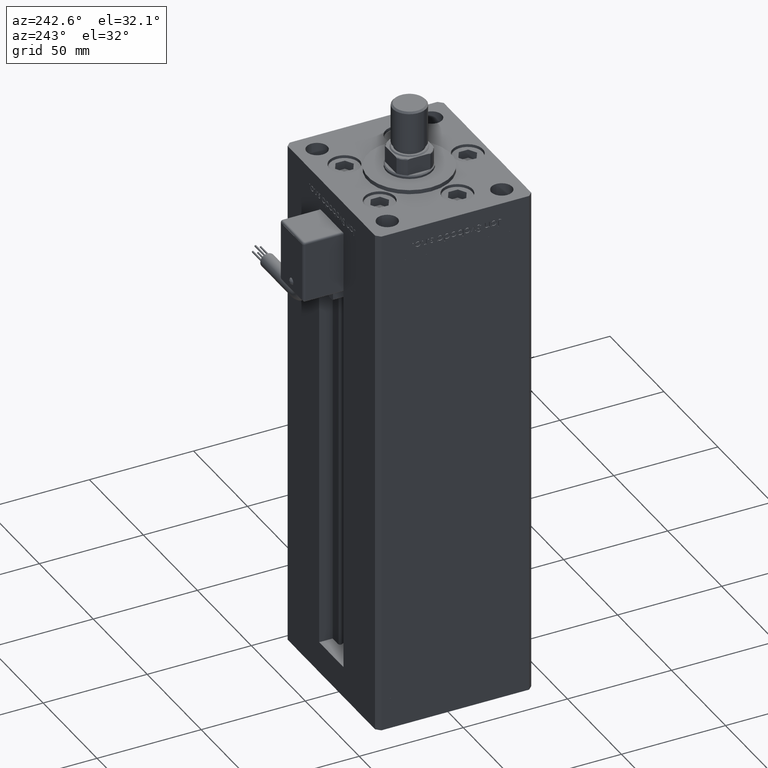
[diagram: clean part render]
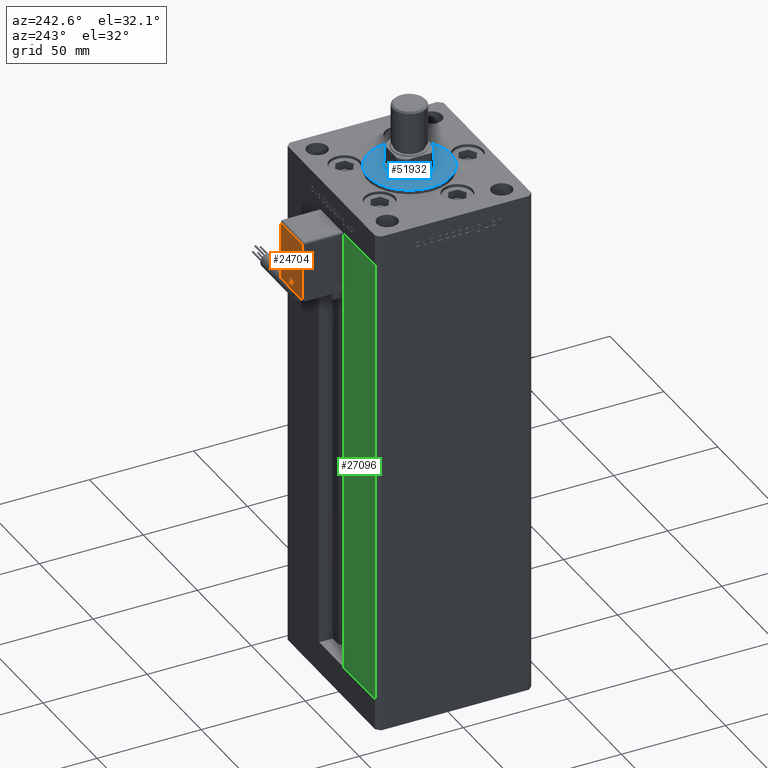
[diagram: same view with three faces highlighted in distinct colors, each labeled with its STEP entity id]
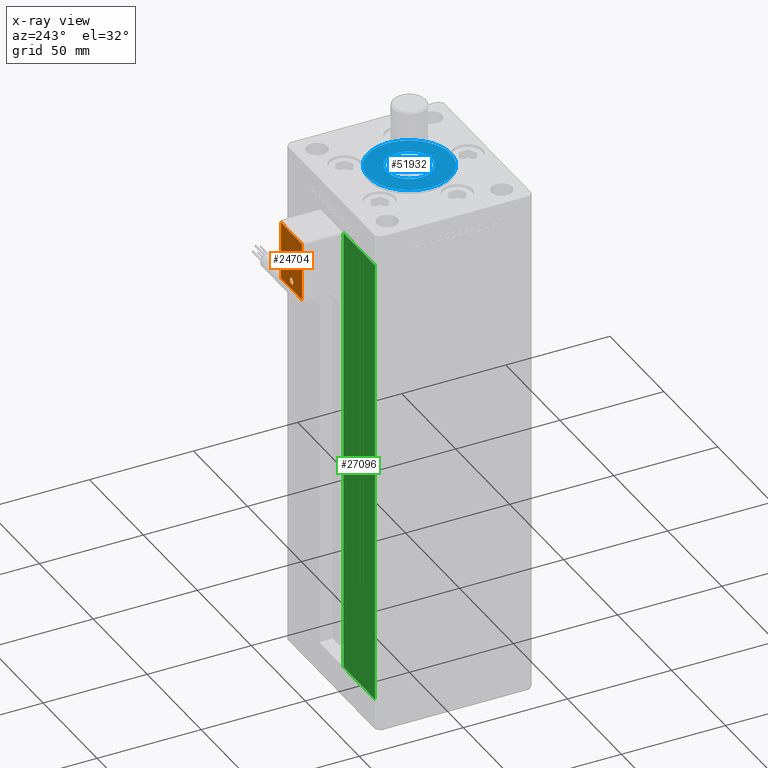
[diagram: x-ray of the same camera — body ghosted, the three highlighted faces saturated]
A machine part, auxiliary view with three faces highlighted in distinct colors.
The next image is the same camera in x-ray (body ghosted, the three faces saturated) — at least one of them is partly hidden behind the body in this view.
Their STEP definitions:

[orange] entity #24704 — the highlighted planar face has unit normal (0, 1, 0).
#1056 = EDGE_CURVE ( 'NONE', #22120, #14031, #46929, .T. ) ;
#1160 = VECTOR ( 'NONE', #20259, 1000.000000000000000 ) ;
#1868 = EDGE_LOOP ( 'NONE', ( #36929, #2287 ) ) ;
#2287 = ORIENTED_EDGE ( 'NONE', *, *, #51051, .T. ) ;
#2434 = EDGE_CURVE ( 'NONE', #24830, #24654, #7047, .T. ) ;
#4861 = CARTESIAN_POINT ( 'NONE',  ( 1.067120849106190655E-14, 51.60000000000000142, -48.40573946085779511 ) ) ;
#5689 = EDGE_CURVE ( 'NONE', #24654, #21529, #32587, .T. ) ;
#7047 = LINE ( 'NONE', #24212, #1160 ) ;
#7713 = EDGE_CURVE ( 'NONE', #8438, #24830, #51336, .T. ) ;
#8438 = VERTEX_POINT ( 'NONE', #47122 ) ;
#9256 = ORIENTED_EDGE ( 'NONE', *, *, #28480, .T. ) ;
#9433 = VECTOR ( 'NONE', #29935, 1000.000000000000000 ) ;
#12524 = CARTESIAN_POINT ( 'NONE',  ( 9.799999999999998934, 51.60000000000000142, -54.00000000000000000 ) ) ;
#12779 = CARTESIAN_POINT ( 'NONE',  ( -9.799999999999998934, 51.60000000000000142, -54.00000000000000000 ) ) ;
#13261 = DIRECTION ( 'NONE',  ( -0.000000000000000000, 1.000000000000000000, 2.478176394252581634E-16 ) ) ;
#14031 = VERTEX_POINT ( 'NONE', #4861 ) ;
#14308 = ORIENTED_EDGE ( 'NONE', *, *, #2434, .T. ) ;
#15704 = DIRECTION ( 'NONE',  ( 0.000000000000000000, 2.478176394252581634E-16, -1.000000000000000000 ) ) ;
#16101 = CARTESIAN_POINT ( 'NONE',  ( 9.799999999999998934, 51.59999999999999432, -26.00000000000000000 ) ) ;
#17275 = LINE ( 'NONE', #51616, #39306 ) ;
#17557 = DIRECTION ( 'NONE',  ( 0.000000000000000000, -1.000000000000000000, -2.478176394252581634E-16 ) ) ;
#17846 = DIRECTION ( 'NONE',  ( 0.000000000000000000, 0.000000000000000000, 1.000000000000000000 ) ) ;
#18881 = CARTESIAN_POINT ( 'NONE',  ( 1.157444300081134802E-14, 51.60000000000000142, -51.59426053914221200 ) ) ;
#19314 = CARTESIAN_POINT ( 'NONE',  ( 1.122044604924999863E-14, 51.60000000000000142, -50.00000000000000000 ) ) ;
#19963 = AXIS2_PLACEMENT_3D ( 'NONE', #33909, #17557, #17846 ) ;
#20259 = DIRECTION ( 'NONE',  ( 1.000000000000000000, 0.000000000000000000, 0.000000000000000000 ) ) ;
#21529 = VERTEX_POINT ( 'NONE', #12524 ) ;
#22120 = VERTEX_POINT ( 'NONE', #18881 ) ;
#23782 = AXIS2_PLACEMENT_3D ( 'NONE', #19314, #53391, #49444 ) ;
#24212 = CARTESIAN_POINT ( 'NONE',  ( -9.799999999999998934, 51.59999999999999432, -26.00000000000000000 ) ) ;
#24654 = VERTEX_POINT ( 'NONE', #16101 ) ;
#24704 = ADVANCED_FACE ( 'NONE', ( #25641, #34628 ), #47039, .T. ) ;
#24830 = VERTEX_POINT ( 'NONE', #25918 ) ;
#25641 = FACE_BOUND ( 'NONE', #1868, .T. ) ;
#25918 = CARTESIAN_POINT ( 'NONE',  ( -9.799999999999998934, 51.59999999999999432, -26.00000000000000000 ) ) ;
#26753 = DIRECTION ( 'NONE',  ( 0.000000000000000000, -2.478176394252581634E-16, 1.000000000000000000 ) ) ;
#27497 = AXIS2_PLACEMENT_3D ( 'NONE', #43353, #13261, #26753 ) ;
#28480 = EDGE_CURVE ( 'NONE', #21529, #8438, #17275, .T. ) ;
#29935 = DIRECTION ( 'NONE',  ( 0.000000000000000000, -2.478176394252581634E-16, 1.000000000000000000 ) ) ;
#32431 = ORIENTED_EDGE ( 'NONE', *, *, #7713, .T. ) ;
#32587 = LINE ( 'NONE', #37089, #53410 ) ;
#33909 = CARTESIAN_POINT ( 'NONE',  ( 1.122044604924999863E-14, 51.60000000000000142, -50.00000000000000000 ) ) ;
#34628 = FACE_OUTER_BOUND ( 'NONE', #40715, .T. ) ;
#36929 = ORIENTED_EDGE ( 'NONE', *, *, #1056, .T. ) ;
#37089 = CARTESIAN_POINT ( 'NONE',  ( 9.799999999999998934, 51.59999999999999432, -26.00000000000000000 ) ) ;
#39306 = VECTOR ( 'NONE', #47118, 1000.000000000000000 ) ;
#40715 = EDGE_LOOP ( 'NONE', ( #14308, #42614, #9256, #32431 ) ) ;
#42614 = ORIENTED_EDGE ( 'NONE', *, *, #5689, .T. ) ;
#43353 = CARTESIAN_POINT ( 'NONE',  ( -2.664535259099999904E-33, 51.59999999999998721, 1.277460843040079085E-14 ) ) ;
#46929 = CIRCLE ( 'NONE', #19963, 1.594260539142210220 ) ;
#47039 = PLANE ( 'NONE',  #27497 ) ;
#47118 = DIRECTION ( 'NONE',  ( -1.000000000000000000, 0.000000000000000000, 0.000000000000000000 ) ) ;
#47122 = CARTESIAN_POINT ( 'NONE',  ( -9.799999999999998934, 51.60000000000000142, -54.00000000000000000 ) ) ;
#48042 = CIRCLE ( 'NONE', #23782, 1.594260539142210220 ) ;
#49444 = DIRECTION ( 'NONE',  ( 0.000000000000000000, 0.000000000000000000, 1.000000000000000000 ) ) ;
#51051 = EDGE_CURVE ( 'NONE', #14031, #22120, #48042, .T. ) ;
#51336 = LINE ( 'NONE', #12779, #9433 ) ;
#51616 = CARTESIAN_POINT ( 'NONE',  ( 9.799999999999998934, 51.60000000000000142, -54.00000000000000000 ) ) ;
#53391 = DIRECTION ( 'NONE',  ( 0.000000000000000000, -1.000000000000000000, -2.478176394252581634E-16 ) ) ;
#53410 = VECTOR ( 'NONE', #15704, 1000.000000000000000 ) ;

[blue] entity #51932 — the highlighted planar face has unit normal (0, 0, 1).
#773 = CARTESIAN_POINT ( 'NONE',  ( 0.000000000000000000, -6.938893903907228378E-15, 2.000000000000000000 ) ) ;
#2800 = DIRECTION ( 'NONE',  ( 1.000000000000000000, 0.000000000000000000, 0.000000000000000000 ) ) ;
#3561 = PLANE ( 'NONE',  #38206 ) ;
#4777 = ORIENTED_EDGE ( 'NONE', *, *, #32537, .F. ) ;
#4965 = VERTEX_POINT ( 'NONE', #7737 ) ;
#4981 = DIRECTION ( 'NONE',  ( 1.000000000000000000, 0.000000000000000000, 0.000000000000000000 ) ) ;
#7580 = CARTESIAN_POINT ( 'NONE',  ( 0.000000000000000000, -6.938893903907228378E-15, 2.000000000000000000 ) ) ;
#7737 = CARTESIAN_POINT ( 'NONE',  ( 11.00000000000000000, -6.938893903907228378E-15, 2.000000000000000000 ) ) ;
#8325 = FACE_BOUND ( 'NONE', #10766, .T. ) ;
#8557 = AXIS2_PLACEMENT_3D ( 'NONE', #28201, #16373, #54666 ) ;
#9767 = DIRECTION ( 'NONE',  ( 0.000000000000000000, 0.000000000000000000, 1.000000000000000000 ) ) ;
#10766 = EDGE_LOOP ( 'NONE', ( #35920, #4777 ) ) ;
#11393 = AXIS2_PLACEMENT_3D ( 'NONE', #7580, #41926, #2800 ) ;
#12396 = CARTESIAN_POINT ( 'NONE',  ( -20.00000000000000000, -6.938893903907228378E-15, 2.000000000000000000 ) ) ;
#12833 = DIRECTION ( 'NONE',  ( 1.000000000000000000, 0.000000000000000000, -0.000000000000000000 ) ) ;
#13462 = DIRECTION ( 'NONE',  ( 0.000000000000000000, 0.000000000000000000, 1.000000000000000000 ) ) ;
#13534 = CARTESIAN_POINT ( 'NONE',  ( 20.00000000000000000, -4.489600305612522259E-15, 2.000000000000000000 ) ) ;
#16373 = DIRECTION ( 'NONE',  ( 0.000000000000000000, 0.000000000000000000, 1.000000000000000000 ) ) ;
#18434 = CIRCLE ( 'NONE', #36436, 11.00000000000000000 ) ;
#20721 = FACE_OUTER_BOUND ( 'NONE', #23258, .T. ) ;
#21348 = DIRECTION ( 'NONE',  ( 1.000000000000000000, 0.000000000000000000, 0.000000000000000000 ) ) ;
#23258 = EDGE_LOOP ( 'NONE', ( #55195, #25731 ) ) ;
#23841 = CIRCLE ( 'NONE', #8557, 20.00000000000000000 ) ;
#24739 = VERTEX_POINT ( 'NONE', #13534 ) ;
#25731 = ORIENTED_EDGE ( 'NONE', *, *, #26630, .T. ) ;
#26630 = EDGE_CURVE ( 'NONE', #24739, #34217, #36529, .T. ) ;
#28201 = CARTESIAN_POINT ( 'NONE',  ( 0.000000000000000000, -6.938893903907228378E-15, 2.000000000000000000 ) ) ;
#32537 = EDGE_CURVE ( 'NONE', #34865, #4965, #41241, .T. ) ;
#34217 = VERTEX_POINT ( 'NONE', #12396 ) ;
#34865 = VERTEX_POINT ( 'NONE', #49166 ) ;
#35920 = ORIENTED_EDGE ( 'NONE', *, *, #52834, .F. ) ;
#36436 = AXIS2_PLACEMENT_3D ( 'NONE', #46966, #13462, #21348 ) ;
#36529 = CIRCLE ( 'NONE', #11393, 20.00000000000000000 ) ;
#37894 = CARTESIAN_POINT ( 'NONE',  ( 0.000000000000000000, -6.938893903907228378E-15, 2.000000000000000000 ) ) ;
#38206 = AXIS2_PLACEMENT_3D ( 'NONE', #37894, #55073, #12833 ) ;
#41241 = CIRCLE ( 'NONE', #55626, 11.00000000000000000 ) ;
#41926 = DIRECTION ( 'NONE',  ( 0.000000000000000000, 0.000000000000000000, 1.000000000000000000 ) ) ;
#46966 = CARTESIAN_POINT ( 'NONE',  ( 0.000000000000000000, -6.938893903907228378E-15, 2.000000000000000000 ) ) ;
#49166 = CARTESIAN_POINT ( 'NONE',  ( -11.00000000000000000, -5.591782424845139381E-15, 2.000000000000000000 ) ) ;
#51932 = ADVANCED_FACE ( 'NONE', ( #8325, #20721 ), #3561, .T. ) ;
#52834 = EDGE_CURVE ( 'NONE', #4965, #34865, #18434, .T. ) ;
#54666 = DIRECTION ( 'NONE',  ( 1.000000000000000000, 0.000000000000000000, 0.000000000000000000 ) ) ;
#55073 = DIRECTION ( 'NONE',  ( 0.000000000000000000, 0.000000000000000000, 1.000000000000000000 ) ) ;
#55195 = ORIENTED_EDGE ( 'NONE', *, *, #55320, .T. ) ;
#55320 = EDGE_CURVE ( 'NONE', #34217, #24739, #23841, .T. ) ;
#55626 = AXIS2_PLACEMENT_3D ( 'NONE', #773, #9767, #4981 ) ;

[green] entity #27096 — the highlighted planar face has unit normal (-0, -1, 0).
#2256 = ORIENTED_EDGE ( 'NONE', *, *, #10512, .F. ) ;
#2321 = VERTEX_POINT ( 'NONE', #19151 ) ;
#2326 = VECTOR ( 'NONE', #40979, 1000.000000000000000 ) ;
#2536 = LINE ( 'NONE', #5918, #21300 ) ;
#3708 = CARTESIAN_POINT ( 'NONE',  ( -40.50000000000000000, 37.50000000000000711, 218.5000000000000000 ) ) ;
#4282 = CARTESIAN_POINT ( 'NONE',  ( -11.25000000000000000, 37.50000000000000000, 218.5000000000000000 ) ) ;
#5918 = CARTESIAN_POINT ( 'NONE',  ( -11.25000000000000000, 37.50000000000000000, 218.5000000000000000 ) ) ;
#7386 = ORIENTED_EDGE ( 'NONE', *, *, #10030, .T. ) ;
#9529 = VECTOR ( 'NONE', #37765, 1000.000000000000000 ) ;
#10004 = VERTEX_POINT ( 'NONE', #15289 ) ;
#10030 = EDGE_CURVE ( 'NONE', #26850, #2321, #19508, .T. ) ;
#10512 = EDGE_CURVE ( 'NONE', #26850, #19378, #28593, .T. ) ;
#11763 = ORIENTED_EDGE ( 'NONE', *, *, #27455, .T. ) ;
#12577 = PLANE ( 'NONE',  #33880 ) ;
#15289 = CARTESIAN_POINT ( 'NONE',  ( -40.50000000000000000, 37.50000000000000711, 218.5000000000000000 ) ) ;
#16800 = DIRECTION ( 'NONE',  ( -2.372271420139223824E-16, -1.000000000000000000, 0.000000000000000000 ) ) ;
#19151 = CARTESIAN_POINT ( 'NONE',  ( -40.50000000000000000, 37.50000000000000711, 0.000000000000000000 ) ) ;
#19378 = VERTEX_POINT ( 'NONE', #4282 ) ;
#19508 = LINE ( 'NONE', #48510, #43646 ) ;
#20036 = LINE ( 'NONE', #3708, #9529 ) ;
#21300 = VECTOR ( 'NONE', #40816, 1000.000000000000000 ) ;
#21560 = CARTESIAN_POINT ( 'NONE',  ( -11.25000000000000000, 37.50000000000000000, 218.5000000000000000 ) ) ;
#23278 = ORIENTED_EDGE ( 'NONE', *, *, #24636, .F. ) ;
#24636 = EDGE_CURVE ( 'NONE', #10004, #2321, #20036, .T. ) ;
#26850 = VERTEX_POINT ( 'NONE', #29797 ) ;
#27096 = ADVANCED_FACE ( 'NONE', ( #55356 ), #12577, .F. ) ;
#27455 = EDGE_CURVE ( 'NONE', #10004, #19378, #2536, .T. ) ;
#28593 = LINE ( 'NONE', #45478, #2326 ) ;
#29797 = CARTESIAN_POINT ( 'NONE',  ( -11.25000000000000000, 37.50000000000000000, 0.000000000000000000 ) ) ;
#33880 = AXIS2_PLACEMENT_3D ( 'NONE', #21560, #16800, #46906 ) ;
#37765 = DIRECTION ( 'NONE',  ( -0.000000000000000000, -0.000000000000000000, -1.000000000000000000 ) ) ;
#40355 = DIRECTION ( 'NONE',  ( -1.000000000000000000, 2.372271420139223331E-16, 0.000000000000000000 ) ) ;
#40816 = DIRECTION ( 'NONE',  ( 1.000000000000000000, 0.000000000000000000, 0.000000000000000000 ) ) ;
#40845 = EDGE_LOOP ( 'NONE', ( #11763, #2256, #7386, #23278 ) ) ;
#40979 = DIRECTION ( 'NONE',  ( -0.000000000000000000, -0.000000000000000000, 1.000000000000000000 ) ) ;
#43646 = VECTOR ( 'NONE', #40355, 1000.000000000000000 ) ;
#45478 = CARTESIAN_POINT ( 'NONE',  ( -11.25000000000000000, 37.50000000000000000, 0.000000000000000000 ) ) ;
#46906 = DIRECTION ( 'NONE',  ( 1.000000000000000000, -2.372271420139223824E-16, 0.000000000000000000 ) ) ;
#48510 = CARTESIAN_POINT ( 'NONE',  ( -11.25000000000000000, 37.50000000000000000, 0.000000000000000000 ) ) ;
#55356 = FACE_OUTER_BOUND ( 'NONE', #40845, .T. ) ;